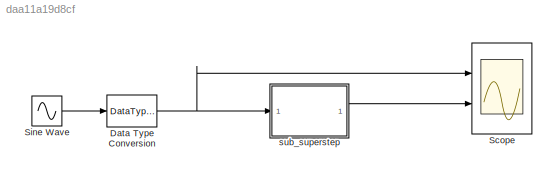
MODEL slx_daa11a19d8cf
KIND model
CONFIG AbsTol = auto
CONFIG FixedStep = auto
CONFIG MaxStep = auto
CONFIG MinStep = auto
CONFIG RelTol = 1e-3
CONFIG SampleTimeConstraint = Unconstrained
CONFIG Solver = FixedStepDiscrete
CONFIG SolverMode = SingleTasking
CONFIG SolverName = FixedStepDiscrete
CONFIG StartTime = 0.0
CONFIG StopTime = 40/100
BLOCK [DataTypeConversion] Data Type Conversion
  OutDataTypeStr = fixdt(1,16,12)
  RndMeth = Floor
  SaturateOnIntegerOverflow = off
BLOCK [Scope] Scope
  NumInputPorts = 2
  Ports = [2]
  ScopeSpecificationString = Simulink.scopes.TimeScopeBlockCfg('CurrentConfiguration', extmgr.ConfigurationSet(extmgr.Configuration('Core','General UI',true),extmgr.Configuration('Core','Source UI',true),extmgr.Configuration('Sources','WiredSimulink',true,'DataLoggingSaveFormat','StructureWithTime','DataLoggingDecimation','1','DataLoggingDecimateData',true),extmgr.Configuration('Visuals','Time Domain',true,'SerializedDisplays...<+2390ch>
BLOCK [Sin] Sine Wave
  Amplitude = 4
  Bias = 0.4
  Frequency = 10
  Ports = [0, 1]
  SampleTime = 1/100
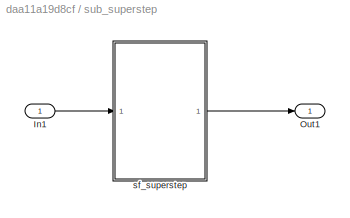
BLOCK [SubSystem] sub_superstep
  Ports = [1, 1]
  RequestExecContextInheritance = off
  Variant = off
BLOCK [Inport] sub_superstep/In1
  IconDisplay = Port number
BLOCK [Outport] sub_superstep/Out1
  IconDisplay = Port number
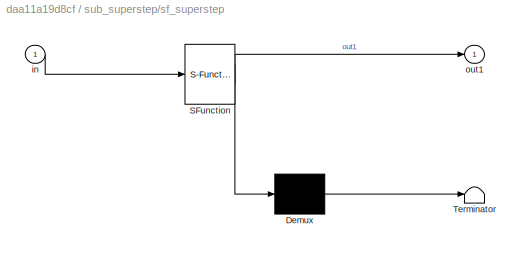
BLOCK [SubSystem] sub_superstep/sf_superstep
  ErrorFcn = Stateflow.Translate.translate
  PermitHierarchicalResolution = ExplicitOnly
  Ports = [1, 1]
  RequestExecContextInheritance = off
  SFBlockType = Chart
  TreatAsAtomicUnit = on
  Variant = off
BLOCK [Demux] sub_superstep/sf_superstep/ Demux 
  Outputs = 1
  Ports = [1, 1]
BLOCK [S-Function] sub_superstep/sf_superstep/ SFunction 
  EnableBusSupport = on
  FunctionName = sf_sfun
  PortCounts = [1 2]
  Ports = [1, 2]
  SFunctionDeploymentMode = off
  Tag = Stateflow S-Function sf_superstep 1
BLOCK [Terminator] sub_superstep/sf_superstep/ Terminator 
BLOCK [Inport] sub_superstep/sf_superstep/in
  IconDisplay = Port number
BLOCK [Outport] sub_superstep/sf_superstep/out1
  IconDisplay = Port number
NET Data Type Conversion:1 -> Scope:1, sub_superstep:1
LINE Sine Wave:1 -> Data Type Conversion:1
LINE sub_superstep/In1:1 -> sub_superstep/sf_superstep:1
LINE sub_superstep/sf_superstep:1 -> sub_superstep/Out1:1
LINE sub_superstep:1 -> Scope:2
note: NET lines group one-source signal fan-out (src -> all destinations, sorted); 1:1 wires keep LINE
CHART sub_superstep/sf_superstep states=3 transitions=5
  STATE_LABEL 'Init/'
  STATE_LABEL 'On1/'
  STATE_LABEL 'Off1/'
